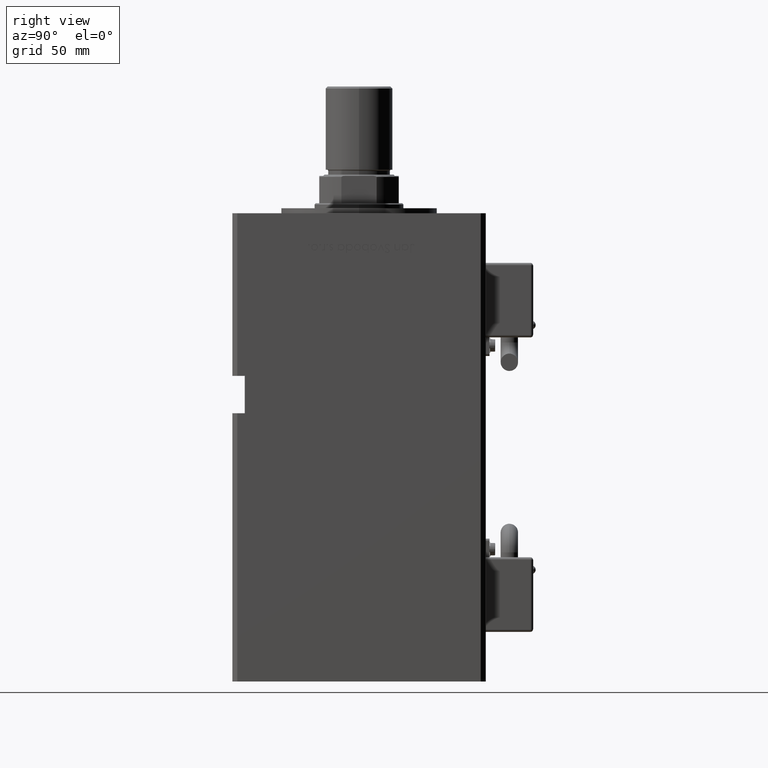
[diagram: clean part render]
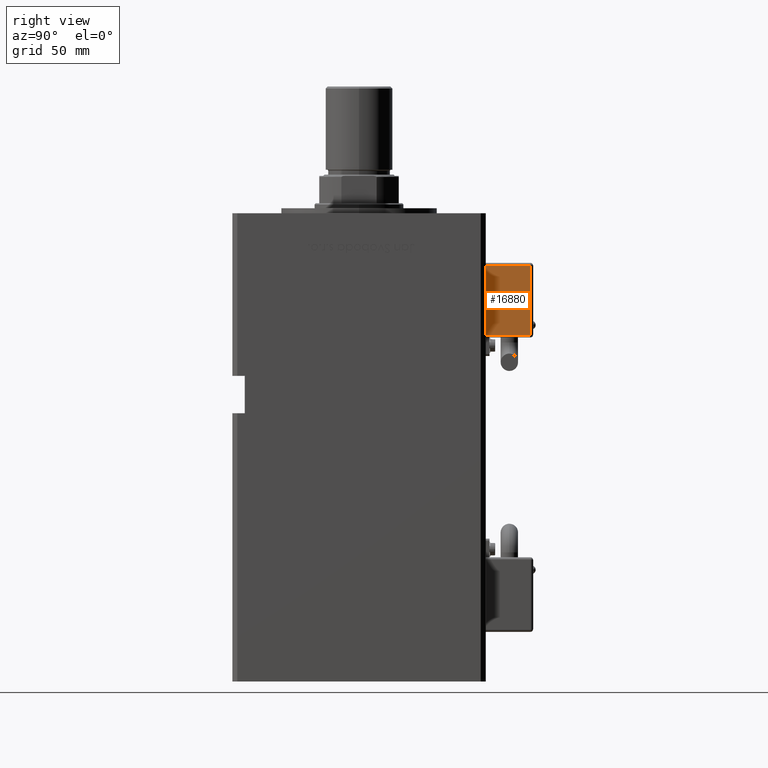
[diagram: same view with one face highlighted and labeled with its STEP entity id]
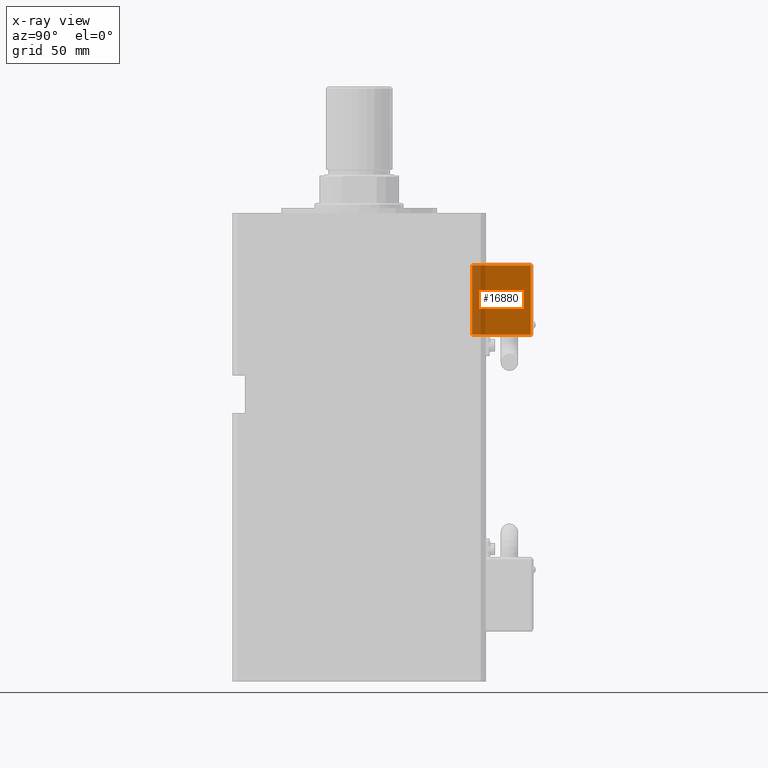
[diagram: x-ray of the same camera — body ghosted, the highlighted face saturated]
A machine part, right view. The second image highlights one B-rep face of the part: STEP entity #16880.
The next image is the same camera in x-ray: the body ghosted, the highlighted face saturated — about 24% of this face is hidden behind the body in this view.
In plain terms, the highlighted planar face has unit normal (1, 0, 0).
Its self-contained STEP definition (entity closure, byte-faithful):
#3452 = LINE ( 'NONE', #20921, #46403 ) ;
#4614 = CARTESIAN_POINT ( 'NONE',  ( 10.80000000000000071, 26.00000000000000000, -26.00000000000000000 ) ) ;
#6741 = AXIS2_PLACEMENT_3D ( 'NONE', #50758, #11449, #28654 ) ;
#10157 = VECTOR ( 'NONE', #48795, 1000.000000000000000 ) ;
#11449 = DIRECTION ( 'NONE',  ( 1.000000000000000000, 4.930380657629929601E-32, 1.094764425253299406E-47 ) ) ;
#11699 = VERTEX_POINT ( 'NONE', #22511 ) ;
#12519 = VERTEX_POINT ( 'NONE', #53644 ) ;
#12746 = VERTEX_POINT ( 'NONE', #46045 ) ;
#16880 = ADVANCED_FACE ( 'NONE', ( #50476 ), #32675, .T. ) ;
#17619 = ORIENTED_EDGE ( 'NONE', *, *, #56150, .T. ) ;
#18125 = DIRECTION ( 'NONE',  ( 2.220446049250000002E-16, 1.200000000000000024E-16, -1.000000000000000000 ) ) ;
#20921 = CARTESIAN_POINT ( 'NONE',  ( 10.80000000000000071, 50.50000000000000000, -25.00000000000000000 ) ) ;
#22511 = CARTESIAN_POINT ( 'NONE',  ( 10.80000000000000071, 27.00000000000000000, -54.00000000000000000 ) ) ;
#27173 = ORIENTED_EDGE ( 'NONE', *, *, #27358, .T. ) ;
#27358 = EDGE_CURVE ( 'NONE', #12519, #11699, #30768, .T. ) ;
#27619 = EDGE_CURVE ( 'NONE', #31223, #12519, #31551, .T. ) ;
#27807 = CARTESIAN_POINT ( 'NONE',  ( 10.80000000000000071, 51.50000000000000000, -54.00000000000000000 ) ) ;
#28654 = DIRECTION ( 'NONE',  ( 0.000000000000000000, -2.220446049250000002E-16, 1.000000000000000000 ) ) ;
#29336 = VECTOR ( 'NONE', #49919, 1000.000000000000000 ) ;
#30768 = LINE ( 'NONE', #48286, #55971 ) ;
#31223 = VERTEX_POINT ( 'NONE', #40315 ) ;
#31551 = LINE ( 'NONE', #4614, #10157 ) ;
#32675 = PLANE ( 'NONE',  #6741 ) ;
#33476 = ORIENTED_EDGE ( 'NONE', *, *, #48848, .T. ) ;
#36990 = LINE ( 'NONE', #27807, #29336 ) ;
#38440 = DIRECTION ( 'NONE',  ( -2.220446049250000002E-16, -1.200000000000000024E-16, 1.000000000000000000 ) ) ;
#40315 = CARTESIAN_POINT ( 'NONE',  ( 10.80000000000000071, 50.50000000000000000, -26.00000000000000000 ) ) ;
#46045 = CARTESIAN_POINT ( 'NONE',  ( 10.80000000000000071, 50.50000000000000000, -54.00000000000000000 ) ) ;
#46403 = VECTOR ( 'NONE', #38440, 1000.000000000000000 ) ;
#46728 = ORIENTED_EDGE ( 'NONE', *, *, #27619, .T. ) ;
#48286 = CARTESIAN_POINT ( 'NONE',  ( 10.80000000000000071, 27.00000000000000000, -55.00000000000000000 ) ) ;
#48795 = DIRECTION ( 'NONE',  ( 3.108624468950000014E-32, -1.000000000000000000, -1.400000000000000069E-16 ) ) ;
#48848 = EDGE_CURVE ( 'NONE', #12746, #31223, #3452, .T. ) ;
#49919 = DIRECTION ( 'NONE',  ( -3.108624468950000014E-32, 1.000000000000000000, 1.400000000000000069E-16 ) ) ;
#50476 = FACE_OUTER_BOUND ( 'NONE', #51676, .T. ) ;
#50758 = CARTESIAN_POINT ( 'NONE',  ( 10.80000000000000071, 26.00000000000000000, -55.00000000000000000 ) ) ;
#51676 = EDGE_LOOP ( 'NONE', ( #46728, #27173, #17619, #33476 ) ) ;
#53644 = CARTESIAN_POINT ( 'NONE',  ( 10.80000000000000071, 27.00000000000000000, -26.00000000000000000 ) ) ;
#55971 = VECTOR ( 'NONE', #18125, 1000.000000000000000 ) ;
#56150 = EDGE_CURVE ( 'NONE', #11699, #12746, #36990, .T. ) ;